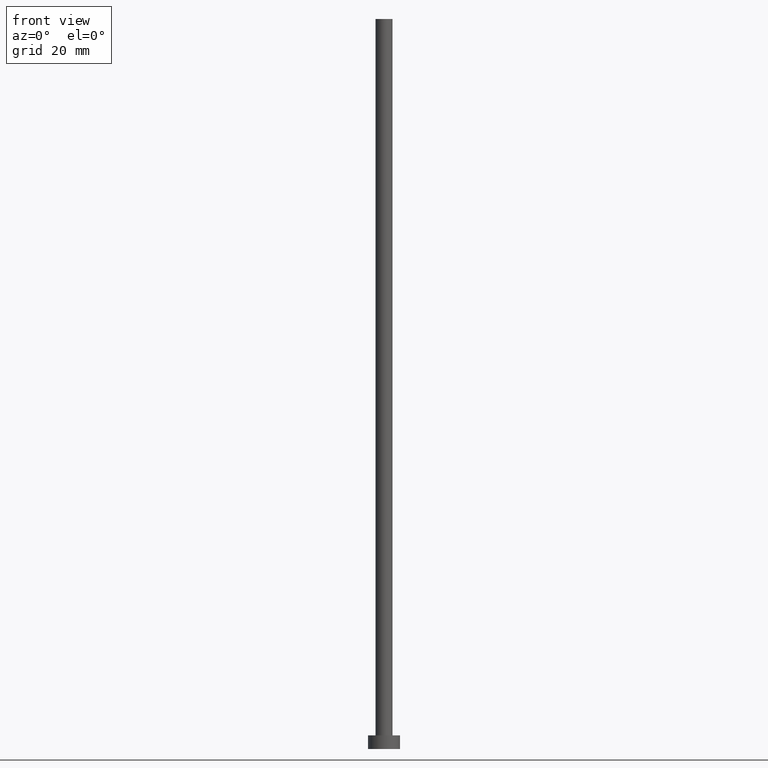
[diagram: clean part render]
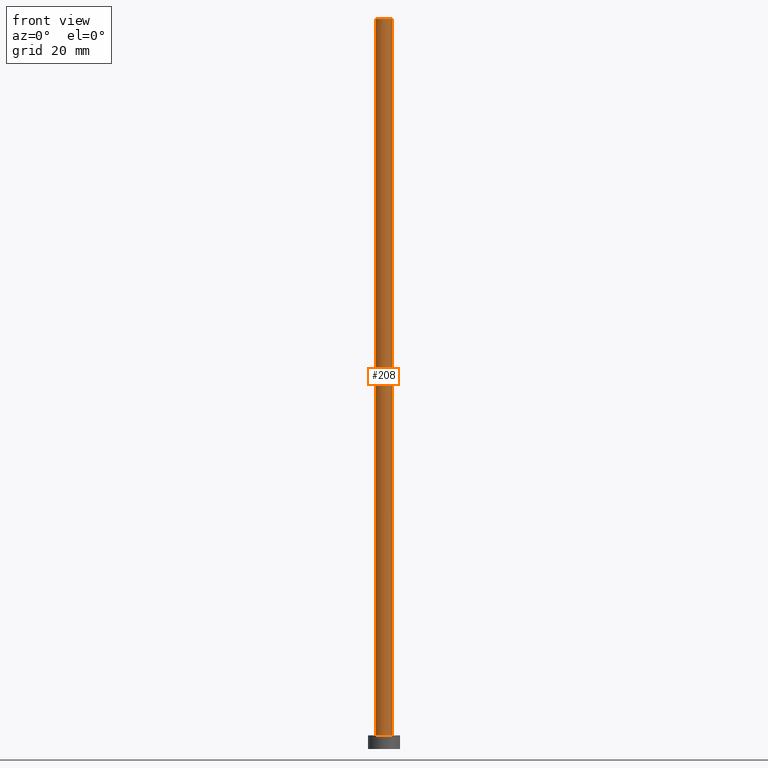
[diagram: same view with one face highlighted and labeled with its STEP entity id]
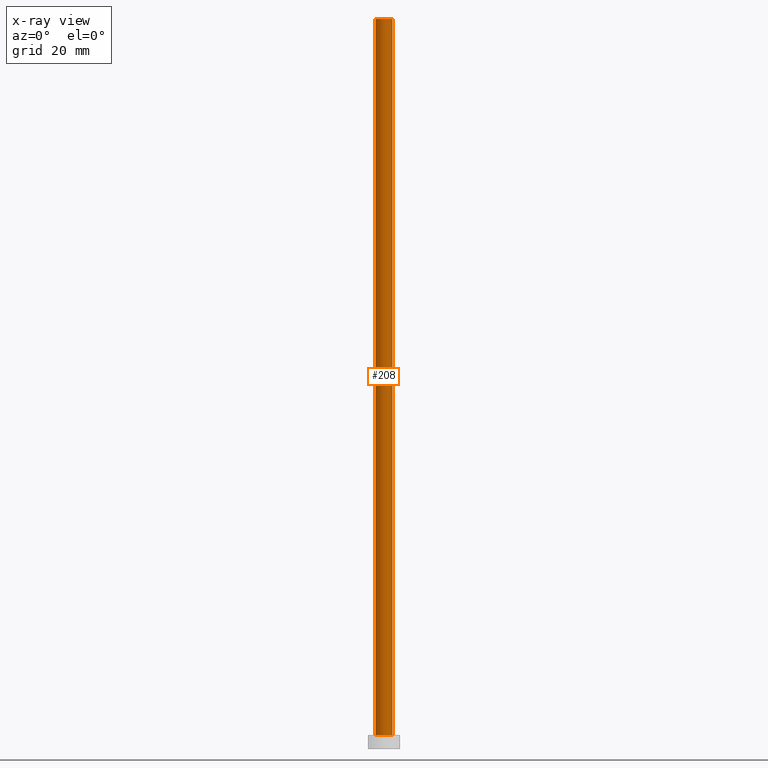
[diagram: x-ray of the same camera — body ghosted, the highlighted face saturated]
A machine part, front view. The second image highlights one B-rep face of the part: STEP entity #208.
The next image is the same camera in x-ray: the body ghosted, the highlighted face saturated — about 0% of this face is hidden behind the body in this view.
In plain terms, the highlighted cylindrical surface (edge-blend (fillet) strip) has radius 1.85 mm, axis along (-0, -0, -1).
Its self-contained STEP definition (entity closure, byte-faithful):
#1 = VECTOR ( 'NONE', #9, 1000.000000000000000 ) ;
#9 = DIRECTION ( 'NONE',  ( -0.000000000000000000, -0.000000000000000000, -1.000000000000000000 ) ) ;
#12 = LINE ( 'NONE', #159, #1 ) ;
#21 = VERTEX_POINT ( 'NONE', #160 ) ;
#25 = DIRECTION ( 'NONE',  ( 1.000000000000000000, 0.000000000000000000, 0.000000000000000000 ) ) ;
#42 = ORIENTED_EDGE ( 'NONE', *, *, #139, .F. ) ;
#48 = VERTEX_POINT ( 'NONE', #242 ) ;
#50 = CARTESIAN_POINT ( 'NONE',  ( 0.000000000000000000, 0.000000000000000000, 3.000000000000000000 ) ) ;
#53 = ORIENTED_EDGE ( 'NONE', *, *, #176, .F. ) ;
#59 = AXIS2_PLACEMENT_3D ( 'NONE', #238, #155, #80 ) ;
#65 = CARTESIAN_POINT ( 'NONE',  ( -1.850000000000000089, 0.000000000000000000, 160.0000000000000000 ) ) ;
#77 = CYLINDRICAL_SURFACE ( 'NONE', #59, 1.850000000000000089 ) ;
#80 = DIRECTION ( 'NONE',  ( -1.000000000000000000, 0.000000000000000000, 0.000000000000000000 ) ) ;
#107 = DIRECTION ( 'NONE',  ( 0.000000000000000000, 0.000000000000000000, 1.000000000000000000 ) ) ;
#114 = CIRCLE ( 'NONE', #197, 1.850000000000000089 ) ;
#115 = EDGE_LOOP ( 'NONE', ( #42, #53, #130, #194 ) ) ;
#130 = ORIENTED_EDGE ( 'NONE', *, *, #157, .T. ) ;
#137 = CIRCLE ( 'NONE', #214, 1.850000000000000089 ) ;
#139 = EDGE_CURVE ( 'NONE', #21, #48, #12, .T. ) ;
#155 = DIRECTION ( 'NONE',  ( -0.000000000000000000, -0.000000000000000000, -1.000000000000000000 ) ) ;
#157 = EDGE_CURVE ( 'NONE', #215, #199, #231, .T. ) ;
#158 = CARTESIAN_POINT ( 'NONE',  ( -1.850000000000000089, 0.000000000000000000, 160.0000000000000000 ) ) ;
#159 = CARTESIAN_POINT ( 'NONE',  ( 1.850000000000000089, 2.265596578422603100E-16, 160.0000000000000000 ) ) ;
#160 = CARTESIAN_POINT ( 'NONE',  ( 1.850000000000000089, 2.265596578422603100E-16, 160.0000000000000000 ) ) ;
#174 = DIRECTION ( 'NONE',  ( -0.000000000000000000, -0.000000000000000000, -1.000000000000000000 ) ) ;
#176 = EDGE_CURVE ( 'NONE', #215, #21, #137, .T. ) ;
#194 = ORIENTED_EDGE ( 'NONE', *, *, #250, .T. ) ;
#197 = AXIS2_PLACEMENT_3D ( 'NONE', #50, #107, #245 ) ;
#199 = VERTEX_POINT ( 'NONE', #235 ) ;
#200 = FACE_OUTER_BOUND ( 'NONE', #115, .T. ) ;
#208 = ADVANCED_FACE ( 'NONE', ( #200 ), #77, .T. ) ;
#214 = AXIS2_PLACEMENT_3D ( 'NONE', #218, #222, #25 ) ;
#215 = VERTEX_POINT ( 'NONE', #158 ) ;
#218 = CARTESIAN_POINT ( 'NONE',  ( 0.000000000000000000, 0.000000000000000000, 160.0000000000000000 ) ) ;
#222 = DIRECTION ( 'NONE',  ( 0.000000000000000000, 0.000000000000000000, 1.000000000000000000 ) ) ;
#231 = LINE ( 'NONE', #65, #249 ) ;
#235 = CARTESIAN_POINT ( 'NONE',  ( -1.850000000000000089, 0.000000000000000000, 3.000000000000000000 ) ) ;
#238 = CARTESIAN_POINT ( 'NONE',  ( 0.000000000000000000, 0.000000000000000000, 160.0000000000000000 ) ) ;
#242 = CARTESIAN_POINT ( 'NONE',  ( 1.850000000000000089, 2.265596578422603100E-16, 3.000000000000000000 ) ) ;
#245 = DIRECTION ( 'NONE',  ( 1.000000000000000000, 0.000000000000000000, 0.000000000000000000 ) ) ;
#249 = VECTOR ( 'NONE', #174, 1000.000000000000000 ) ;
#250 = EDGE_CURVE ( 'NONE', #199, #48, #114, .T. ) ;